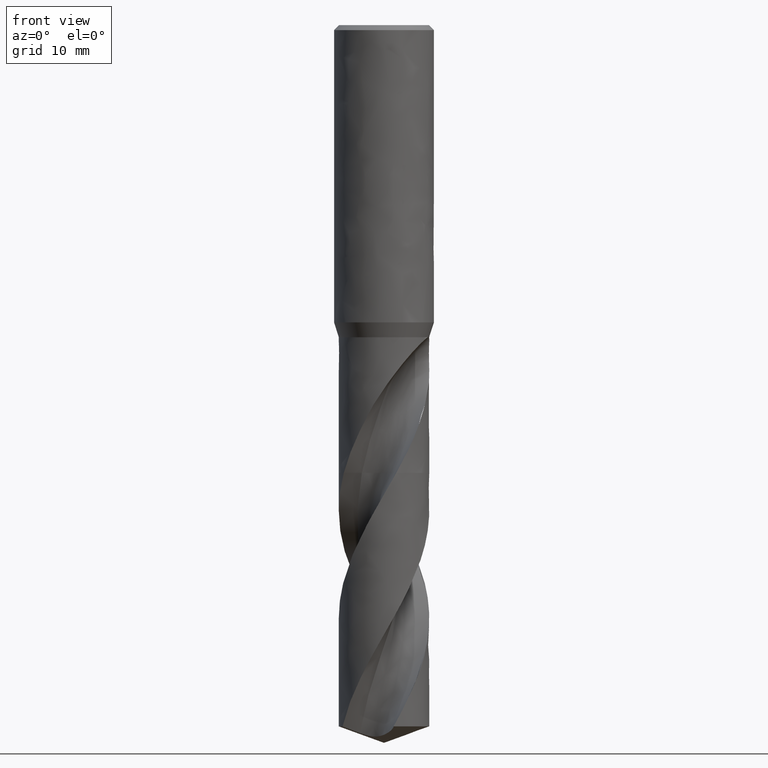
[diagram: clean part render]
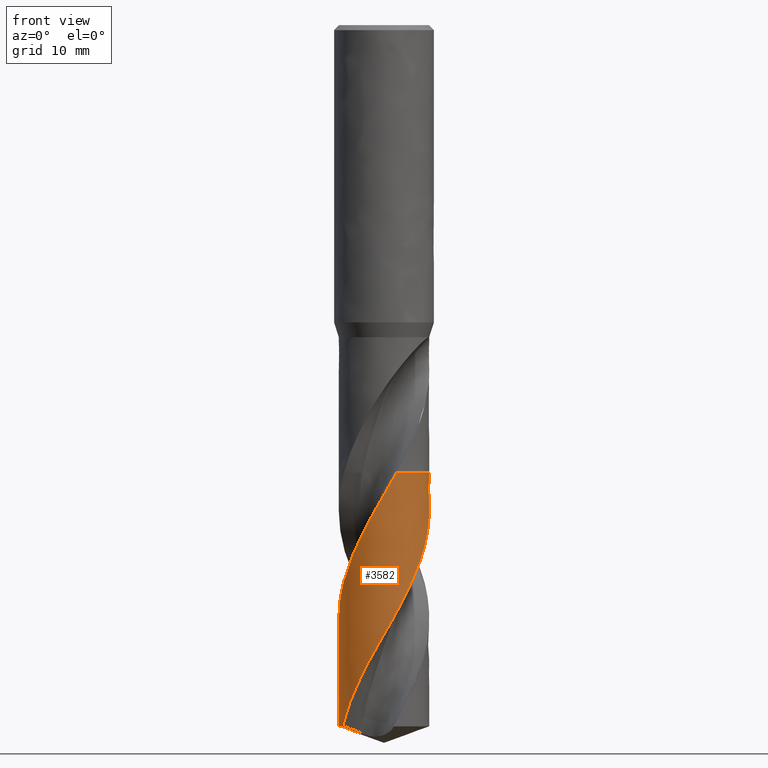
[diagram: same view with one face highlighted and labeled with its STEP entity id]
A machine part, front view. The second image highlights one B-rep face of the part: STEP entity #3582.
In plain terms, the highlighted face is a freeform B-spline surface patch.
Its self-contained STEP definition (entity closure, byte-faithful):
#1955 = VERTEX_POINT('', #1956);
#1956 = CARTESIAN_POINT('', (1.95984002110214, -6.98008073554954, -71.7500000001728));
#1963 = EDGE_CURVE('', #1964, #1955, #1966, .T.);
#1964 = VERTEX_POINT('', #1965);
#1965 = CARTESIAN_POINT('', (6.45040752198991, 3.3097949780505, -71.75));
#1966 = CIRCLE('', #1967, 7.25);
#1967 = AXIS2_PLACEMENT_3D('', #1968, #1969, #1970);
#1968 = CARTESIAN_POINT('', (2.69019411014971E-31, 4.39342039194113E-15, -71.75));
#1969 = DIRECTION('', (3.74939945665464E-33, 6.12323399573677E-17, -1.));
#1970 = DIRECTION('', (-1., 6.12323399573677E-17, 0.));
#2216 = VERTEX_POINT('', #2217);
#2217 = CARTESIAN_POINT('', (-0.169726985240922, -7.24801302085482, -75.490145296997));
#2249 = EDGE_CURVE('', #1955, #2216, #2250, .T.);
#2250 = B_SPLINE_CURVE_WITH_KNOTS('', 3, (#2251, #2252, #2253, #2254, #2255, #2256, #2257, #2258, #2259, #2260, #2261, #2262, #2263, #2264, #2265, #2266, #2267, #2268, #2269), .UNSPECIFIED., .F., .U., (4, 3, 3, 3, 3, 3, 4), (8.80141812828885, 9.78653202148142, 10.7827612156012, 11.7788348363971, 12.7747472312097, 13.070473785329, 13.1174216646654), .UNSPECIFIED.);
#2251 = CARTESIAN_POINT('', (1.95984002110214, -6.98008073554954, -71.7500000001728));
#2252 = CARTESIAN_POINT('', (1.8019605296794, -7.02440945760875, -72.0344950725825));
#2253 = CARTESIAN_POINT('', (1.64258402031159, -7.06337676678469, -72.3190484444071));
#2254 = CARTESIAN_POINT('', (1.48211431539711, -7.09688925911165, -72.6035727769977));
#2255 = CARTESIAN_POINT('', (1.31983398830771, -7.13077988176407, -72.8913074729785));
#2256 = CARTESIAN_POINT('', (1.15638469788912, -7.15910244454069, -73.1790948114045));
#2257 = CARTESIAN_POINT('', (0.992193255684331, -7.18178616664222, -73.4668470541299));
#2258 = CARTESIAN_POINT('', (0.828027453973281, -7.20446634640422, -73.7545543608375));
#2259 = CARTESIAN_POINT('', (0.663075074908964, -7.22151539215818, -74.042312775685));
#2260 = CARTESIAN_POINT('', (0.497776256579679, -7.23289145490128, -74.3300403920061));
#2261 = CARTESIAN_POINT('', (0.332504193767227, -7.24426567629766, -74.6177214362998));
#2262 = CARTESIAN_POINT('', (0.166837355906592, -7.24997215894088, -74.9054557099396));
#2263 = CARTESIAN_POINT('', (0.00121426579944853, -7.24999989831422, -75.1931597282613));
#2264 = CARTESIAN_POINT('', (-0.0479659090583952, -7.25000813525287, -75.2785906541015));
#2265 = CARTESIAN_POINT('', (-0.0971450160396165, -7.24951592795408, -75.3640237080602));
#2266 = CARTESIAN_POINT('', (-0.146311660053918, -7.24852349779817, -75.4494566581179));
#2267 = CARTESIAN_POINT('', (-0.154117079074988, -7.24836594518559, -75.4630195112834));
#2268 = CARTESIAN_POINT('', (-0.161922202618944, -7.24819578573411, -75.4765823939109));
#2269 = CARTESIAN_POINT('', (-0.169726985241078, -7.24801302085481, -75.4901452969972));
#3323 = EDGE_CURVE('', #1964, #3324, #3326, .T.);
#3324 = VERTEX_POINT('', #3325);
#3325 = CARTESIAN_POINT('', (-6.6367524105464, -2.91822162302772, -112.36121580157));
#3326 = B_SPLINE_CURVE_WITH_KNOTS('', 3, (#3327, #3328, #3329, #3330, #3331, #3332, #3333, #3334, #3335, #3336, #3337, #3338, #3339, #3340, #3341, #3342, #3343, #3344, #3345, #3346, #3347, #3348, #3349, #3350, #3351, #3352, #3353, #3354, #3355, #3356, #3357, #3358, #3359, #3360, #3361, #3362, #3363, #3364, #3365, #3366, #3367, #3368, #3369, #3370, #3371, #3372, #3373, #3374, #3375, #3376, #3377, #3378, #3379, #3380, #3381, #3382, #3383, #3384, #3385, #3386, #3387, #3388, #3389, #3390, #3391, #3392, #3393, #3394, #3395, #3396, #3397, #3398, #3399, #3400, #3401, #3402, #3403, #3404, #3405, #3406, #3407, #3408, #3409, #3410, #3411, #3412, #3413, #3414, #3415, #3416, #3417, #3418, #3419, #3420, #3421, #3422, #3423, #3424, #3425, #3426, #3427, #3428, #3429, #3430, #3431, #3432, #3433, #3434, #3435, #3436, #3437, #3438, #3439, #3440, #3441, #3442, #3443, #3444, #3445, #3446, #3447, #3448, #3449, #3450, #3451, #3452, #3453, #3454, #3455, #3456, #3457, #3458, #3459, #3460, #3461, #3462, #3463, #3464, #3465, #3466, #3467, #3468, #3469, #3470, #3471, #3472, #3473, #3474, #3475, #3476, #3477), .UNSPECIFIED., .F., .U., (4, 3, 3, 3, 3, 3, 3, 3, 3, 3, 3, 3, 3, 3, 3, 3, 3, 3, 3, 3, 3, 3, 3, 3, 3, 3, 3, 3, 3, 3, 3, 3, 3, 3, 3, 3, 3, 3, 3, 3, 3, 3, 3, 3, 3, 3, 3, 3, 3, 3, 4), (20.6922131804141, 22.1833597564081, 23.179965125656, 24.1764193650949, 25.1727227312173, 26.1688729329361, 27.16486672122, 27.4602960270871, 27.591634085688, 27.7230274590235, 28.7222593740084, 29.7213202163339, 30.7202141849878, 31.718946231027, 32.7175201535646, 33.7159387592981, 34.7142055498239, 35.712322718366, 36.7102920775763, 37.7081158295884, 38.7057948515419, 39.7033301766624, 40.7007227646234, 41.6979724140582, 42.6950793446421, 43.6920433280833, 44.6888632060536, 45.6855382711767, 46.6820670910686, 47.6784475561533, 48.6746778514459, 49.6707552390853, 50.3350799737017, 50.5320654433226, 51.5313020080553, 52.5303686936251, 53.5292706136494, 54.5280122318992, 55.5265970440591, 56.5250286312533, 57.5233099102548, 58.5214430893092, 59.5194305120623, 60.517273828312, 61.5149741859797, 62.5125328738496, 63.509950422471, 64.5072270117799, 65.5043630147353, 66.501357859774, 67.4658999993153), .UNSPECIFIED.);
#3327 = CARTESIAN_POINT('', (6.45040752198991, 3.3097949780505, -71.75));
#3328 = CARTESIAN_POINT('', (6.56342120962214, 3.0895442203453, -72.1810171852648));
#3329 = CARTESIAN_POINT('', (6.66515124515291, 2.86347736545946, -72.6122064274282));
#3330 = CARTESIAN_POINT('', (6.75502377212368, 2.63289837214505, -73.0432677045546));
#3331 = CARTESIAN_POINT('', (6.81508992817359, 2.47879128001044, -73.3313668023731));
#3332 = CARTESIAN_POINT('', (6.86988488970933, 2.32261312272183, -73.6195125921117));
#3333 = CARTESIAN_POINT('', (6.91926534562638, 2.1647787593225, -73.9076235315367));
#3334 = CARTESIAN_POINT('', (6.96863831326462, 2.0069683306499, -74.1956907804975));
#3335 = CARTESIAN_POINT('', (7.01261261357779, 1.84745700504157, -74.4838069984985));
#3336 = CARTESIAN_POINT('', (7.05107490851438, 1.68666613012742, -74.7718894652812));
#3337 = CARTESIAN_POINT('', (7.08953137986794, 1.5258996005887, -75.0599283134456));
#3338 = CARTESIAN_POINT('', (7.1224887124272, 1.36380736615466, -75.3480168284078));
#3339 = CARTESIAN_POINT('', (7.14986322831741, 1.20081464696039, -75.6360709285872));
#3340 = CARTESIAN_POINT('', (7.17723353584946, 1.03784698507645, -75.924080745433));
#3341 = CARTESIAN_POINT('', (7.19903072229385, 0.87393135285092, -76.2121391285834));
#3342 = CARTESIAN_POINT('', (7.2151999809629, 0.709499284504977, -76.5001632545301));
#3343 = CARTESIAN_POINT('', (7.23136670076855, 0.545093034940752, -76.7881421555271));
#3344 = CARTESIAN_POINT('', (7.24191194764795, 0.380123235955441, -77.0761701848158));
#3345 = CARTESIAN_POINT('', (7.24681070748821, 0.21502225427718, -77.3641637492324));
#3346 = CARTESIAN_POINT('', (7.24826376596733, 0.166050394222479, -77.4495877145528));
#3347 = CARTESIAN_POINT('', (7.24922037753073, 0.117064301652269, -77.5350134084427));
#3348 = CARTESIAN_POINT('', (7.24968038963854, 0.0680753119004575, -77.6204386715631));
#3349 = CARTESIAN_POINT('', (7.24988489574533, 0.0462964339115725, -77.6584159066948));
#3350 = CARTESIAN_POINT('', (7.24999125984745, 0.0245168054638286, -77.6963933667546));
#3351 = CARTESIAN_POINT('', (7.24999948320834, 0.00273742193407296, -77.7343708617074));
#3352 = CARTESIAN_POINT('', (7.2500077100326, -0.0190511342668307, -77.772364351377));
#3353 = CARTESIAN_POINT('', (7.24991771347428, -0.0408395548847382, -77.8103580670222));
#3354 = CARTESIAN_POINT('', (7.24972950380953, -0.0626268440338528, -77.8483518180207));
#3355 = CARTESIAN_POINT('', (7.24829819035014, -0.228316742284704, -78.1372900468207));
#3356 = CARTESIAN_POINT('', (7.24118330918355, -0.393968232240906, -78.4262779034044));
#3357 = CARTESIAN_POINT('', (7.22840623115297, -0.559145202456261, -78.7152308509411));
#3358 = CARTESIAN_POINT('', (7.21563134061128, -0.724293893687389, -79.0041343285316));
#3359 = CARTESIAN_POINT('', (7.19719250559644, -0.889015575565918, -79.2930871412637));
#3360 = CARTESIAN_POINT('', (7.17314104719078, -1.05287583176144, -79.5820055574224));
#3361 = CARTESIAN_POINT('', (7.14909360611318, -1.21670871828994, -79.8708757153822));
#3362 = CARTESIAN_POINT('', (7.1194283608785, -1.37972854534942, -80.1597949637174));
#3363 = CARTESIAN_POINT('', (7.08422615147555, -1.54150570376827, -80.448679746559));
#3364 = CARTESIAN_POINT('', (7.04902964841779, -1.70325663780165, -80.7375177006271));
#3365 = CARTESIAN_POINT('', (7.00828791658291, -1.8638117135246, -81.0264051869612));
#3366 = CARTESIAN_POINT('', (6.96211057891716, -2.02274968469405, -81.3152579124201));
#3367 = CARTESIAN_POINT('', (6.91594055224375, -2.18166249212848, -81.6040649054881));
#3368 = CARTESIAN_POINT('', (6.8643233536692, -2.33900432805902, -81.8929209952582));
#3369 = CARTESIAN_POINT('', (6.80739755438112, -2.49436134844292, -82.1817428790681));
#3370 = CARTESIAN_POINT('', (6.75048060925297, -2.64969420481117, -82.4705198399225));
#3371 = CARTESIAN_POINT('', (6.68824009959711, -2.8030882585782, -82.7593458591977));
#3372 = CARTESIAN_POINT('', (6.62084215998749, -2.95414100755738, -83.0481373978424));
#3373 = CARTESIAN_POINT('', (6.55345446861658, -3.10517078810997, -83.3368850240968));
#3374 = CARTESIAN_POINT('', (6.48089175866808, -3.25390296970027, -83.6256820422112));
#3375 = CARTESIAN_POINT('', (6.40334678845893, -3.39994851530619, -83.9144445110909));
#3376 = CARTESIAN_POINT('', (6.3258134408264, -3.54597217134867, -84.2031636997437));
#3377 = CARTESIAN_POINT('', (6.24327691886194, -3.68935212526772, -84.4919317217364));
#3378 = CARTESIAN_POINT('', (6.15595676237083, -3.82971230509823, -84.7806656965363));
#3379 = CARTESIAN_POINT('', (6.06864953696076, -3.97005169924841, -85.069356913254));
#3380 = CARTESIAN_POINT('', (5.97653478352394, -4.10741296515827, -85.358097201143));
#3381 = CARTESIAN_POINT('', (5.87985621391253, -4.24143736293655, -85.6468029869307));
#3382 = CARTESIAN_POINT('', (5.78319175004046, -4.37544220608934, -85.9354666495406));
#3383 = CARTESIAN_POINT('', (5.68193743166364, -4.5061491012024, -86.2241794886488));
#3384 = CARTESIAN_POINT('', (5.57636077880653, -4.63321707505575, -86.5128580764723));
#3385 = CARTESIAN_POINT('', (5.47079943939041, -4.76026661824411, -86.8014947927039));
#3386 = CARTESIAN_POINT('', (5.36088628663631, -4.88371524029032, -87.0901800936518));
#3387 = CARTESIAN_POINT('', (5.24691215558666, -5.00324023324454, -87.3788314582276));
#3388 = CARTESIAN_POINT('', (5.13295444035945, -5.12274801087943, -87.6674412480222));
#3389 = CARTESIAN_POINT('', (5.01490416263239, -5.23836771189076, -87.9561001301139));
#3390 = CARTESIAN_POINT('', (4.89307177936765, -5.34979892724539, -88.2447245143453));
#3391 = CARTESIAN_POINT('', (4.77125682907785, -5.4612141979264, -88.5333075993629));
#3392 = CARTESIAN_POINT('', (4.64562644778897, -5.56847362583914, -88.8219396161175));
#3393 = CARTESIAN_POINT('', (4.51651140416277, -5.67129832896027, -89.1105376541405));
#3394 = CARTESIAN_POINT('', (4.38741486429753, -5.77410829604698, -89.3990943325437));
#3395 = CARTESIAN_POINT('', (4.25479699789062, -5.87251478664927, -89.6876994742071));
#3396 = CARTESIAN_POINT('', (4.1190070908412, -5.96626186029408, -89.9762706957715));
#3397 = CARTESIAN_POINT('', (3.98323661701947, -6.05999551756454, -90.2648006191984));
#3398 = CARTESIAN_POINT('', (3.8442564027961, -6.14909780963742, -90.5533796262461));
#3399 = CARTESIAN_POINT('', (3.70243026919458, -6.23333859996003, -90.8419242048701));
#3400 = CARTESIAN_POINT('', (3.56062446805685, -6.317567313363, -91.1304274171954));
#3401 = CARTESIAN_POINT('', (3.41593348005686, -6.39695968520876, -91.4189792903239));
#3402 = CARTESIAN_POINT('', (3.26873721565266, -6.47131030124559, -91.7074974189749));
#3403 = CARTESIAN_POINT('', (3.12156222763093, -6.54565017032392, -91.9959738439721));
#3404 = CARTESIAN_POINT('', (2.9718398778501, -6.61497137407457, -92.2844987177714));
#3405 = CARTESIAN_POINT('', (2.81996264557955, -6.67909504929642, -92.572989621626));
#3406 = CARTESIAN_POINT('', (2.66810747724943, -6.74320940896169, -92.861438615011));
#3407 = CARTESIAN_POINT('', (2.51405532230545, -6.80214583556446, -93.1499366096808));
#3408 = CARTESIAN_POINT('', (2.35820808505908, -6.85575339605808, -93.4384003563618));
#3409 = CARTESIAN_POINT('', (2.2023837157624, -6.90935309054767, -93.7268217758605));
#3410 = CARTESIAN_POINT('', (2.04472049110452, -6.95764067268962, -94.015291556016));
#3411 = CARTESIAN_POINT('', (1.88563138466206, -7.00049243133491, -94.303727787329));
#3412 = CARTESIAN_POINT('', (1.72656596206421, -7.04333781057173, -94.5921210786881));
#3413 = CARTESIAN_POINT('', (1.56602912560296, -7.08076139790028, -94.8805628722913));
#3414 = CARTESIAN_POINT('', (1.40443967372797, -7.11266821965279, -95.1689706209));
#3415 = CARTESIAN_POINT('', (1.24287457585753, -7.14457023255873, -95.457334902045));
#3416 = CARTESIAN_POINT('', (1.08021204966356, -7.17096606898218, -95.7457479847426));
#3417 = CARTESIAN_POINT('', (0.916875554202235, -7.19178970897414, -96.0341271504005));
#3418 = CARTESIAN_POINT('', (0.753564128647248, -7.21261015282366, -96.3224620538214));
#3419 = CARTESIAN_POINT('', (0.589531959804083, -7.22786605694088, -96.6108449978515));
#3420 = CARTESIAN_POINT('', (0.425207687320119, -7.23752018461047, -96.8991945434054));
#3421 = CARTESIAN_POINT('', (0.315613111573714, -7.24395891706403, -97.0915066445574));
#3422 = CARTESIAN_POINT('', (0.205871307402012, -7.24790776265657, -97.283834360653));
#3423 = CARTESIAN_POINT('', (0.0961087744764744, -7.24936294466407, -97.4761529540578));
#3424 = CARTESIAN_POINT('', (0.0635620048494177, -7.24979443501238, -97.5331792342257));
#3425 = CARTESIAN_POINT('', (0.0310126231455657, -7.25000673328497, -97.5902061033503));
#3426 = CARTESIAN_POINT('', (-0.00153603925797155, -7.2499998372816, -97.6472329352371));
#3427 = CARTESIAN_POINT('', (-0.16664371785657, -7.24996485633239, -97.9365095793564));
#3428 = CARTESIAN_POINT('', (-0.331760813404839, -7.24428647998993, -98.2258350709415));
#3429 = CARTESIAN_POINT('', (-0.496454640660494, -7.2329822887774, -98.5151267613055));
#3430 = CARTESIAN_POINT('', (-0.661120468490862, -7.22168001937859, -98.8043692694919));
#3431 = CARTESIAN_POINT('', (-0.825411246051764, -7.2047505472211, -99.0936602486631));
#3432 = CARTESIAN_POINT('', (-0.98889667507471, -7.18224083180358, -99.3829172829762));
#3433 = CARTESIAN_POINT('', (-1.15235514216782, -7.15973482867634, -99.6721266131733));
#3434 = CARTESIAN_POINT('', (-1.31505455940676, -7.13164414065272, -99.9613851320929));
#3435 = CARTESIAN_POINT('', (-1.47657146838165, -7.09804456866548, -100.250609239303));
#3436 = CARTESIAN_POINT('', (-1.63806245744729, -7.06445038867009, -100.53978693241));
#3437 = CARTESIAN_POINT('', (-1.79841691965619, -7.02533955335151, -100.829013152016));
#3438 = CARTESIAN_POINT('', (-1.95721555685221, -6.98081709143104, -101.118205803856));
#3439 = CARTESIAN_POINT('', (-2.11598926208093, -6.93630161970007, -101.407353051392));
#3440 = CARTESIAN_POINT('', (-2.27325373075961, -6.88636332289487, -101.696548818246));
#3441 = CARTESIAN_POINT('', (-2.42859908914934, -6.83113507875397, -101.98571055176));
#3442 = CARTESIAN_POINT('', (-2.58392061101867, -6.77591530895168, -102.274827915686));
#3443 = CARTESIAN_POINT('', (-2.73736691456202, -6.71539185339575, -102.563994309885));
#3444 = CARTESIAN_POINT('', (-2.88853964902829, -6.64972470828616, -102.853126595636));
#3445 = CARTESIAN_POINT('', (-3.03968962529982, -6.58406744899151, -103.142215354166));
#3446 = CARTESIAN_POINT('', (-3.18860990386137, -6.51324922886506, -103.431352287693));
#3447 = CARTESIAN_POINT('', (-3.33491194831135, -6.43745775108545, -103.720455841838));
#3448 = CARTESIAN_POINT('', (-3.4811922881321, -6.36167751734504, -104.009516506047));
#3449 = CARTESIAN_POINT('', (-3.62489728795379, -6.28090374500595, -104.298625788535));
#3450 = CARTESIAN_POINT('', (-3.76565437823172, -6.19534882825045, -104.587700946569));
#3451 = CARTESIAN_POINT('', (-3.90639091390501, -6.10980640498629, -104.876733891272));
#3452 = CARTESIAN_POINT('', (-4.04421937929947, -6.01946053977055, -105.16581561224));
#3453 = CARTESIAN_POINT('', (-4.17878269669134, -5.92454852067506, -105.454863608286));
#3454 = CARTESIAN_POINT('', (-4.31332658352856, -5.82965020660117, -105.743869866637));
#3455 = CARTESIAN_POINT('', (-4.44464517209775, -5.73015956095767, -106.032924030743));
#3456 = CARTESIAN_POINT('', (-4.57239693315105, -5.62633862167136, -106.321944903654));
#3457 = CARTESIAN_POINT('', (-4.70013039152065, -5.5225325565582, -106.610924369249));
#3458 = CARTESIAN_POINT('', (-4.82433438981781, -5.41436799814672, -106.899952553741));
#3459 = CARTESIAN_POINT('', (-4.94468866587359, -5.30212730869235, -107.188946572611));
#3460 = CARTESIAN_POINT('', (-5.06502585206285, -5.18990255700492, -107.477899555388));
#3461 = CARTESIAN_POINT('', (-5.18154762724985, -5.07357180876817, -107.76690102032));
#3462 = CARTESIAN_POINT('', (-5.29395288065679, -4.95343950173872, -108.055869093542));
#3463 = CARTESIAN_POINT('', (-5.40634223044504, -4.83332419158751, -108.344796282215));
#3464 = CARTESIAN_POINT('', (-5.51464884571872, -4.70937350290828, -108.633771293778));
#3465 = CARTESIAN_POINT('', (-5.61859246958056, -4.58191211840347, -108.922712970508));
#3466 = CARTESIAN_POINT('', (-5.72252140368506, -4.45446874728649, -109.211613812765));
#3467 = CARTESIAN_POINT('', (-5.82211771623733, -4.32348006385996, -109.500563421462));
#3468 = CARTESIAN_POINT('', (-5.91712605338152, -4.18928624808494, -109.789478925587));
#3469 = CARTESIAN_POINT('', (-6.01212099717444, -4.05511134964882, -110.078353701213));
#3470 = CARTESIAN_POINT('', (-6.1025555428351, -3.91769499801403, -110.36727661108));
#3471 = CARTESIAN_POINT('', (-6.18819681668774, -3.77739594931953, -110.656166430662));
#3472 = CARTESIAN_POINT('', (-6.27382596687444, -3.63711676182888, -110.945015354032));
#3473 = CARTESIAN_POINT('', (-6.3546879691246, -3.49391514741475, -111.233912206646));
#3474 = CARTESIAN_POINT('', (-6.43057518882012, -3.34816408512651, -111.522775600079));
#3475 = CARTESIAN_POINT('', (-6.50399223968371, -3.20715729641594, -111.802236338441));
#3476 = CARTESIAN_POINT('', (-6.57277260542887, -3.06372740726611, -112.081741413842));
#3477 = CARTESIAN_POINT('', (-6.6367524105464, -2.91822162302773, -112.36121580157));
#3582 = ADVANCED_FACE('', (#3583), #3678, .T.);
#3583 = FACE_OUTER_BOUND('', #3584, .T.);
#3584 = EDGE_LOOP('', (#3585, #3586, #3587, #3662, #3670, #3677));
#3585 = ORIENTED_EDGE('', *, *, #1963, .T.);
#3586 = ORIENTED_EDGE('', *, *, #2249, .T.);
#3587 = ORIENTED_EDGE('', *, *, #3588, .T.);
#3588 = EDGE_CURVE('', #2216, #3589, #3591, .T.);
#3589 = VERTEX_POINT('', #3590);
#3590 = CARTESIAN_POINT('', (-7.25, 6.26474322883328E-15, -95.0610211563863));
#3591 = B_SPLINE_CURVE_WITH_KNOTS('', 3, (#3592, #3593, #3594, #3595, #3596, #3597, #3598, #3599, #3600, #3601, #3602, #3603, #3604, #3605, #3606, #3607, #3608, #3609, #3610, #3611, #3612, #3613, #3614, #3615, #3616, #3617, #3618, #3619, #3620, #3621, #3622, #3623, #3624, #3625, #3626, #3627, #3628, #3629, #3630, #3631, #3632, #3633, #3634, #3635, #3636, #3637, #3638, #3639, #3640, #3641, #3642, #3643, #3644, #3645, #3646, #3647, #3648, #3649, #3650, #3651, #3652, #3653, #3654, #3655, #3656, #3657, #3658, #3659, #3660, #3661), .UNSPECIFIED., .F., .U., (4, 3, 3, 3, 3, 3, 3, 3, 3, 3, 3, 3, 3, 3, 3, 3, 3, 3, 3, 3, 3, 3, 3, 4), (0., 0.999207352719161, 1.99824220752071, 2.99710941958918, 3.99581307204204, 4.99435771044468, 5.99274630484746, 6.99098168024071, 7.98906689038994, 8.98700346464683, 9.98479335852763, 10.98243822669, 11.9799384971814, 12.9772952543815, 13.9745088844869, 14.9715789138707, 15.968505471253, 16.965287729909, 17.961924388784, 18.9584144759196, 19.9547559392136, 20.950946578014, 21.9469841228409, 22.5571911684409), .UNSPECIFIED.);
#3592 = CARTESIAN_POINT('', (-0.169726985240922, -7.24801302085482, -75.490145296997));
#3593 = CARTESIAN_POINT('', (-0.33583877330557, -7.24412317505569, -75.7788090807429));
#3594 = CARTESIAN_POINT('', (-0.50181911541412, -7.23451939829735, -76.0675279170497));
#3595 = CARTESIAN_POINT('', (-0.667226612539282, -7.21923185993639, -76.3562175222428));
#3596 = CARTESIAN_POINT('', (-0.832605554581525, -7.20394696073589, -76.6448572895763));
#3597 = CARTESIAN_POINT('', (-0.997459575485571, -7.18297591477915, -76.9335530186412));
#3598 = CARTESIAN_POINT('', (-1.16135342255468, -7.1563788488258, -77.2222191594968));
#3599 = CARTESIAN_POINT('', (-1.32521976746776, -7.12978624598483, -77.5108368608205));
#3600 = CARTESIAN_POINT('', (-1.48817359433455, -7.09756178362905, -77.7995099649257));
#3601 = CARTESIAN_POINT('', (-1.6497831353112, -7.05979571988051, -78.0881543893178));
#3602 = CARTESIAN_POINT('', (-1.81136621351675, -7.02203584014001, -78.3767515495986));
#3603 = CARTESIAN_POINT('', (-1.97165372271272, -6.97872491734563, -78.6654039148853));
#3604 = CARTESIAN_POINT('', (-2.13022237398605, -6.92998215274538, -78.9540271058021));
#3605 = CARTESIAN_POINT('', (-2.28876577788652, -6.88124714899029, -79.242604342003));
#3606 = CARTESIAN_POINT('', (-2.44563610074957, -6.82706817556171, -79.5312374123592));
#3607 = CARTESIAN_POINT('', (-2.60042131222056, -6.76759255562487, -79.8198411574973));
#3608 = CARTESIAN_POINT('', (-2.75518233518502, -6.70812623002828, -80.1083998021151));
#3609 = CARTESIAN_POINT('', (-2.90790407974237, -6.64334748692444, -80.397013310026));
#3610 = CARTESIAN_POINT('', (-3.0581833556071, -6.57343247957167, -80.6855983763151));
#3611 = CARTESIAN_POINT('', (-3.20843956866649, -6.50352820181681, -80.97413915452));
#3612 = CARTESIAN_POINT('', (-3.35629846814847, -6.42846864489806, -81.262735204075));
#3613 = CARTESIAN_POINT('', (-3.50137247428361, -6.34845578045, -81.5513019945503));
#3614 = CARTESIAN_POINT('', (-3.64642465683479, -6.26845495239297, -81.839825375722));
#3615 = CARTESIAN_POINT('', (-3.78873380372142, -6.18347968887399, -82.1284042446018));
#3616 = CARTESIAN_POINT('', (-3.92792754263842, -6.09375788982319, -82.4169542601222));
#3617 = CARTESIAN_POINT('', (-4.06710055267839, -6.00404945223646, -82.7054613044727));
#3618 = CARTESIAN_POINT('', (-4.20320027283233, -5.90956928266931, -82.9940228095302));
#3619 = CARTESIAN_POINT('', (-4.33586916609667, -5.81057127780841, -83.282556005075));
#3620 = CARTESIAN_POINT('', (-4.46851855920073, -5.7115878240372, -83.571046790953));
#3621 = CARTESIAN_POINT('', (-4.59777678285755, -5.60805913087837, -83.8595929127691));
#3622 = CARTESIAN_POINT('', (-4.7233076563958, -5.50026042865543, -84.1481097385101));
#3623 = CARTESIAN_POINT('', (-4.84882028440437, -5.39247739464513, -84.4365846292102));
#3624 = CARTESIAN_POINT('', (-4.97064195693389, -5.28039522774875, -84.7251146079172));
#3625 = CARTESIAN_POINT('', (-5.08845534457243, -5.16431236529048, -85.0136161495269));
#3626 = CARTESIAN_POINT('', (-5.20625165645386, -5.0482463277687, -85.3020758760054));
#3627 = CARTESIAN_POINT('', (-5.32007583641538, -4.92814624511973, -85.5905899034812));
#3628 = CARTESIAN_POINT('', (-5.42963109866537, -4.804332017295, -85.8790755902326));
#3629 = CARTESIAN_POINT('', (-5.53917059887828, -4.68053560298657, -86.1675197717016));
#3630 = CARTESIAN_POINT('', (-5.64447375980544, -4.55299081392274, -86.4560192882487));
#3631 = CARTESIAN_POINT('', (-5.74526898537737, -4.42203395347219, -86.744489604449));
#3632 = CARTESIAN_POINT('', (-5.8460497461876, -4.29109588617148, -87.0329185233078));
#3633 = CARTESIAN_POINT('', (-5.94235225488359, -4.15670974412715, -87.3214020843549));
#3634 = CARTESIAN_POINT('', (-6.03392720606809, -4.01923157728828, -87.6098575616996));
#3635 = CARTESIAN_POINT('', (-6.12548897027974, -3.88177320757548, -87.898271500889));
#3636 = CARTESIAN_POINT('', (-6.21235163114038, -3.74118305648051, -88.1867397544874));
#3637 = CARTESIAN_POINT('', (-6.29429113954044, -3.59783254900818, -88.4751795391201));
#3638 = CARTESIAN_POINT('', (-6.37621885736919, -3.45450266875724, -88.7635778191122));
#3639 = CARTESIAN_POINT('', (-6.45324789238903, -3.30837302532867, -89.0520312927146));
#3640 = CARTESIAN_POINT('', (-6.52518157491395, -3.15982680133002, -89.3404558722461));
#3641 = CARTESIAN_POINT('', (-6.5971048454996, -3.01130207844472, -89.6288387041693));
#3642 = CARTESIAN_POINT('', (-6.66395471426948, -2.86031902329619, -89.9172756838132));
#3643 = CARTESIAN_POINT('', (-6.72555992496298, -2.70727606566672, -90.2056848706353));
#3644 = CARTESIAN_POINT('', (-6.78715613699594, -2.55425546299081, -90.4940519295863));
#3645 = CARTESIAN_POINT('', (-6.84352729973218, -2.3991308033487, -90.7824734167769));
#3646 = CARTESIAN_POINT('', (-6.8945305718864, -2.2423086748536, -91.0708662826943));
#3647 = CARTESIAN_POINT('', (-6.94552634317434, -2.08550960962029, -91.3592167357185));
#3648 = CARTESIAN_POINT('', (-6.99116997189194, -1.92697007128492, -91.6476220565823));
#3649 = CARTESIAN_POINT('', (-7.03134709772764, -1.76710440870851, -91.9359990109237));
#3650 = CARTESIAN_POINT('', (-7.07151823125207, -1.60726258966974, -92.2243329546106));
#3651 = CARTESIAN_POINT('', (-7.10623612798261, -1.44604847259454, -92.5127205664161));
#3652 = CARTESIAN_POINT('', (-7.13541429793007, -1.2838858192593, -92.8010805817201));
#3653 = CARTESIAN_POINT('', (-7.16458805093529, -1.12174771383355, -93.0893969455703));
#3654 = CARTESIAN_POINT('', (-7.18823225320343, -0.958614647667555, -93.3777678746898));
#3655 = CARTESIAN_POINT('', (-7.20629006504305, -0.794911000340228, -93.6661100846463));
#3656 = CARTESIAN_POINT('', (-7.2243451017691, -0.631232510890187, -93.9544079823467));
#3657 = CARTESIAN_POINT('', (-7.23682041609785, -0.466938501483358, -94.2427603469063));
#3658 = CARTESIAN_POINT('', (-7.24368826655686, -0.302457099349004, -94.5310848360852));
#3659 = CARTESIAN_POINT('', (-7.24789574925667, -0.201690104195224, -94.7077223891873));
#3660 = CARTESIAN_POINT('', (-7.25, -0.100838117012014, -94.8843740801401));
#3661 = CARTESIAN_POINT('', (-7.25, 5.95943189706136E-15, -95.0610211563863));
#3662 = ORIENTED_EDGE('', *, *, #3663, .T.);
#3663 = EDGE_CURVE('', #3589, #3664, #3666, .T.);
#3664 = VERTEX_POINT('', #3665);
#3665 = CARTESIAN_POINT('', (-7.25, 7.3240746286758E-15, -112.36121580157));
#3666 = LINE('', #3667, #3668);
#3667 = CARTESIAN_POINT('', (-7.25, 6.26474322883328E-15, -95.0610211563863));
#3668 = VECTOR('', #3669, 17.3001946451837);
#3669 = DIRECTION('', (0., 1.05933139984252E-15, -17.3001946451837));
#3670 = ORIENTED_EDGE('', *, *, #3671, .F.);
#3671 = EDGE_CURVE('', #3324, #3664, #3672, .T.);
#3672 = CIRCLE('', #3673, 7.25);
#3673 = AXIS2_PLACEMENT_3D('', #3674, #3675, #3676);
#3674 = CARTESIAN_POINT('', (4.21287081475462E-31, 6.88014016398489E-15, -112.36121580157));
#3675 = DIRECTION('', (3.74939945665464E-33, 6.12323399573677E-17, -1.));
#3676 = DIRECTION('', (-1., 6.12323399573677E-17, 0.));
#3677 = ORIENTED_EDGE('', *, *, #3323, .F.);
#3678 = (
   BOUNDED_SURFACE ()
   B_SPLINE_SURFACE (2, 1, ((#3679, #3680), (#3681, #3682), (#3683, #3684), (#3685, #3686), (#3687, #3688), (#3689, #3690), (#3691, #3692)), .UNSPECIFIED., .F., .F., .U.)
   B_SPLINE_SURFACE_WITH_KNOTS ((3, 2, 2, 3), (2, 2), (19.2396591506037, 22.776546738526, 34.164820107789, 45.553093477052), (0.348774470164394, 1.), .UNSPECIFIED.)
   GEOMETRIC_REPRESENTATION_ITEM ()
   RATIONAL_B_SPLINE_SURFACE (((0.874572975575285, 0.874572975575285), (0.909035342178921, 0.909035342178921), (1., 1.), (0.707106781186548, 0.707106781186548), (1., 1.), (0.707106781186548, 0.707106781186548), (1., 1.)))
   REPRESENTATION_ITEM ('')
   SURFACE ()
);
#3679 = CARTESIAN_POINT('', (6.45040752220637, 3.30979497816157, -71.75));
#3680 = CARTESIAN_POINT('', (6.45040752220637, 3.30979497816157, -112.36121580157));
#3681 = CARTESIAN_POINT('', (7.25, 1.75148173897582, -71.75));
#3682 = CARTESIAN_POINT('', (7.25, 1.75148173897582, -112.36121580157));
#3683 = CARTESIAN_POINT('', (7.25, 4.83735485663205E-15, -71.75));
#3684 = CARTESIAN_POINT('', (7.25, 7.3240746286758E-15, -112.36121580157));
#3685 = CARTESIAN_POINT('', (7.25, -7.25, -71.75));
#3686 = CARTESIAN_POINT('', (7.25, -7.24999999999999, -112.36121580157));
#3687 = CARTESIAN_POINT('', (8.87868929381831E-16, -7.25, -71.75));
#3688 = CARTESIAN_POINT('', (8.87868929381831E-16, -7.24999999999999, -112.36121580157));
#3689 = CARTESIAN_POINT('', (-7.25, -7.25, -71.75));
#3690 = CARTESIAN_POINT('', (-7.25, -7.25, -112.36121580157));
#3691 = CARTESIAN_POINT('', (-7.25, 4.83735485663205E-15, -71.75));
#3692 = CARTESIAN_POINT('', (-7.25, 7.3240746286758E-15, -112.36121580157));